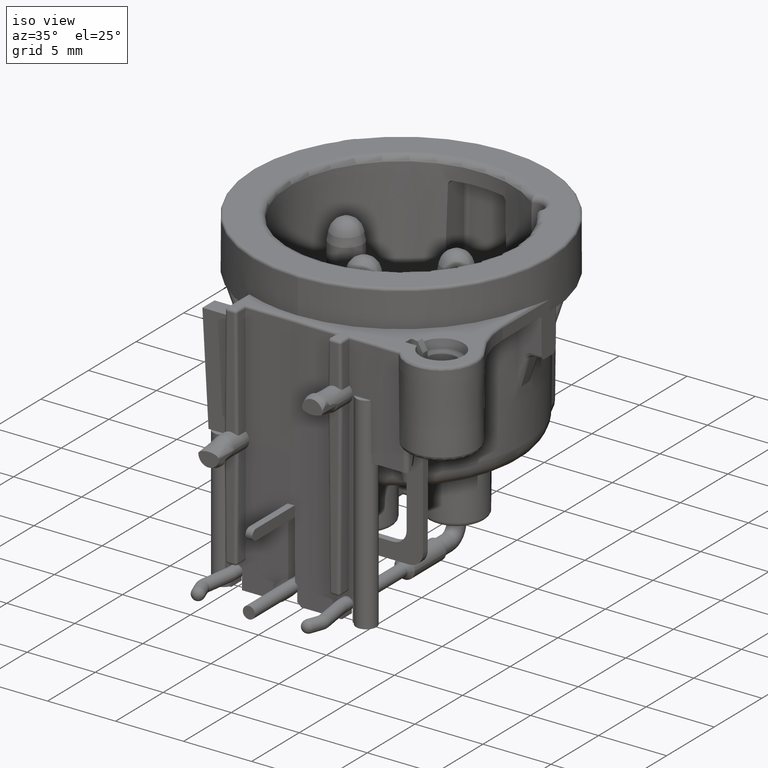
[diagram: clean part render]
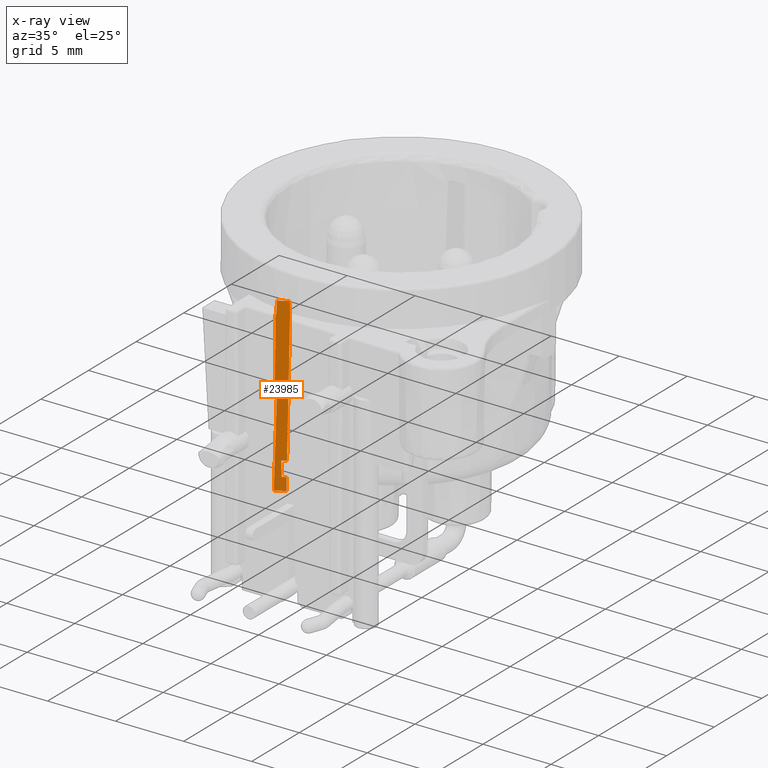
[diagram: x-ray — body ghosted, one internal face saturated and labeled with its STEP entity id]
A machine part, iso view, then the same camera in x-ray: the body is ghosted and one INTERNAL B-rep face — a face not visible from any outside direction — is saturated and labeled: STEP entity #23985.
In plain terms, the highlighted planar face has unit normal (-0.4999, 0.8659, 0.0175).
Its self-contained STEP definition (entity closure, byte-faithful):
#3296=DIRECTION('',(2.617661647924E-2,-5.035134147032E-3,9.996446529511E-1));
#3297=VECTOR('',#3296,9.344385460589E-1);
#3298=CARTESIAN_POINT('',(-1.852505576705E0,-9.419187570119E0,
-1.273410649608E1));
#3299=LINE('',#3298,#3297);
#3304=DIRECTION('',(2.617661647924E-2,-5.035134147030E-3,9.996446529511E-1));
#3305=VECTOR('',#3304,9.903519186316E0);
#3306=CARTESIAN_POINT('',(-1.799240623535E0,-9.429433209954E0,-1.07E1));
#3307=LINE('',#3306,#3305);
#8334=DIRECTION('',(3.511118707754E-2,8.566914879726E-5,9.993834085089E-1));
#8335=VECTOR('',#8334,6.470615456197E0);
#8336=CARTESIAN_POINT('',(-2.501439563641E0,-9.800554332118E0,
-1.238771031678E1));
#8337=LINE('',#8336,#8335);
#8338=DIRECTION('',(1.730895472542E-1,8.014798448857E-2,9.816396025089E-1));
#8339=VECTOR('',#8338,7.483920732676E-1);
#8340=CARTESIAN_POINT('',(-2.403787418983E0,-9.859982116280E0,
-6.655735884342E0));
#8341=LINE('',#8340,#8339);
#8342=DIRECTION('',(1.745152054354E-2,-1.007564008358E-2,9.997969423376E-1));
#8343=VECTOR('',#8342,5.711122258821E0);
#8344=CARTESIAN_POINT('',(-2.403787418983E0,-9.859982116280E0,
-6.655735884342E0));
#8345=LINE('',#8344,#8343);
#8346=CARTESIAN_POINT('',(-2.304119651556E0,-9.917525328633E0,
-9.457733126564E-1));
#8347=CARTESIAN_POINT('',(-2.295251139058E0,-9.912571091397E0,
-9.375372535513E-1));
#8348=CARTESIAN_POINT('',(-2.279769676826E0,-9.903987923399E0,
-9.199211870632E-1));
#8349=CARTESIAN_POINT('',(-2.262892763897E0,-9.894906511961E0,
-8.870525922216E-1));
#8350=CARTESIAN_POINT('',(-2.258456498854E0,-9.892803198822E0,
-8.643308256044E-1));
#8351=CARTESIAN_POINT('',(-2.257911208195E0,-9.892727496961E0,
-8.524668998244E-1));
#8353=CARTESIAN_POINT('',(-2.218643764214E0,-9.887238215834E0,
-1.165734175856E-14));
#8354=CARTESIAN_POINT('',(-2.225189568169E0,-9.888159582103E0,
-1.417912447191E-1));
#8355=CARTESIAN_POINT('',(-2.238279927263E0,-9.889995817652E0,
-4.256603070184E-1));
#8356=CARTESIAN_POINT('',(-2.251367845379E0,-9.891819091994E0,
-7.101025122037E-1));
#8357=CARTESIAN_POINT('',(-2.257911208195E0,-9.892727496961E0,
-8.524668998244E-1));
#8359=DIRECTION('',(8.660254037844E-1,5.E-1,1.090912012012E-14));
#8360=VECTOR('',#8359,7.836303199053E-1);
#8361=CARTESIAN_POINT('',(-2.218643764214E0,-9.887238215834E0,
-1.165734175856E-14));
#8362=LINE('',#8361,#8360);
#8363=DIRECTION('',(0.E0,2.015128016716E-2,-9.997969423376E-1));
#8364=VECTOR('',#8363,8.001624791225E-1);
#8365=CARTESIAN_POINT('',(-1.54E0,-9.495423055881E0,0.E0));
#8366=LINE('',#8365,#8364);
#8367=DIRECTION('',(-8.660254037844E-1,-5.E-1,0.E0));
#8368=VECTOR('',#8367,3.472870139268E-1);
#8369=CARTESIAN_POINT('',(-1.799240623535E0,-9.429433209954E0,-1.07E1));
#8370=LINE('',#8369,#8368);
#8371=DIRECTION('',(0.E0,2.015128016716E-2,-9.997969423376E-1));
#8372=VECTOR('',#8371,1.100223408794E0);
#8373=CARTESIAN_POINT('',(-2.1E0,-9.603076716918E0,-1.07E1));
#8374=LINE('',#8373,#8372);
#8375=DIRECTION('',(-8.660254037844E-1,-5.E-1,0.E0));
#8376=VECTOR('',#8375,3.140264264195E-1);
#8377=CARTESIAN_POINT('',(-1.828045137261E0,-9.423892593551E0,-1.18E1));
#8378=LINE('',#8377,#8376);
#8379=DIRECTION('',(-8.660254037844E-1,-5.E-1,0.E0));
#8380=VECTOR('',#8379,7.590772661989E-1);
#8381=CARTESIAN_POINT('',(-1.852505576705E0,-9.419187570119E0,
-1.273410649608E1));
#8382=LINE('',#8381,#8380);
#8383=CARTESIAN_POINT('',(-2.509885772668E0,-9.798726203219E0,
-1.273410649608E1));
#8384=CARTESIAN_POINT('',(-2.507870129313E0,-9.799889935453E0,
-1.261863036558E1));
#8385=CARTESIAN_POINT('',(-2.503455206997E0,-9.799390599884E0,
-1.250318644729E1));
#8386=CARTESIAN_POINT('',(-2.501439563641E0,-9.800554332118E0,
-1.238771031678E1));
#8405=CARTESIAN_POINT('',(-2.304119651556E0,-9.917525328633E0,
-9.457733126564E-1));
#12179=CARTESIAN_POINT('',(-2.509885772668E0,-9.798726203219E0,
-1.273410649608E1));
#12181=VERTEX_POINT('',#12179);
#12187=CARTESIAN_POINT('',(-1.852505576705E0,-9.419187570119E0,
-1.273410649608E1));
#12189=VERTEX_POINT('',#12187);
#12876=CARTESIAN_POINT('',(-1.54E0,-9.479298757585E0,-8.E-1));
#12878=VERTEX_POINT('',#12876);
#12888=CARTESIAN_POINT('',(-1.54E0,-9.495423055881E0,0.E0));
#12889=VERTEX_POINT('',#12888);
#12908=VERTEX_POINT('',#8405);
#12909=VERTEX_POINT('',#8351);
#12910=VERTEX_POINT('',#8353);
#13313=CARTESIAN_POINT('',(-2.403787418983E0,-9.859982116280E0,
-6.655735884342E0));
#13314=VERTEX_POINT('',#13313);
#13315=CARTESIAN_POINT('',(-2.501439563641E0,-9.800554332118E0,
-1.238771031678E1));
#13316=CARTESIAN_POINT('',(-2.274248573852E0,-9.8E0,-5.921084587019E0));
#13317=VERTEX_POINT('',#13315);
#13318=VERTEX_POINT('',#13316);
#13637=CARTESIAN_POINT('',(-1.828045137261E0,-9.423892593551E0,-1.18E1));
#13639=VERTEX_POINT('',#13637);
#13641=CARTESIAN_POINT('',(-1.799240623535E0,-9.429433209954E0,-1.07E1));
#13643=VERTEX_POINT('',#13641);
#13657=CARTESIAN_POINT('',(-2.1E0,-9.580905806761E0,-1.18E1));
#13658=VERTEX_POINT('',#13657);
#13659=CARTESIAN_POINT('',(-2.1E0,-9.603076716918E0,-1.07E1));
#13660=VERTEX_POINT('',#13659);
#23957=CARTESIAN_POINT('',(-3.927129920953E0,-1.059952008730E1,-1.36E1));
#23958=DIRECTION('',(-4.999238475782E-1,8.658935039208E-1,1.745240643728E-2));
#23959=DIRECTION('',(-8.660254037844E-1,-5.E-1,0.E0));
#23960=AXIS2_PLACEMENT_3D('',#23957,#23958,#23959);
#23961=PLANE('',#23960);
#23962=ORIENTED_EDGE('',*,*,#15940,.T.);
#23964=ORIENTED_EDGE('',*,*,#23963,.F.);
#23966=ORIENTED_EDGE('',*,*,#23965,.T.);
#23968=ORIENTED_EDGE('',*,*,#23967,.T.);
#23970=ORIENTED_EDGE('',*,*,#23969,.F.);
#23972=ORIENTED_EDGE('',*,*,#23971,.T.);
#23973=ORIENTED_EDGE('',*,*,#23532,.T.);
#23974=ORIENTED_EDGE('',*,*,#16711,.F.);
#23975=ORIENTED_EDGE('',*,*,#16113,.T.);
#23976=ORIENTED_EDGE('',*,*,#15998,.T.);
#23977=ORIENTED_EDGE('',*,*,#15645,.F.);
#23978=ORIENTED_EDGE('',*,*,#16700,.F.);
#23980=ORIENTED_EDGE('',*,*,#23979,.T.);
#23982=ORIENTED_EDGE('',*,*,#23981,.T.);
#23983=EDGE_LOOP('',(#23962,#23964,#23966,#23968,#23970,#23972,#23973,#23974,
#23975,#23976,#23977,#23978,#23980,#23982));
#23984=FACE_OUTER_BOUND('',#23983,.F.);
#23985=ADVANCED_FACE('',(#23984),#23961,.F.);
#8352=B_SPLINE_CURVE_WITH_KNOTS('',3,(#8346,#8347,#8348,#8349,#8350,#8351),
.UNSPECIFIED.,.F.,.F.,(4,1,1,4),(0.E0,3.333333333333E-1,6.666666666667E-1,1.E0),
.UNSPECIFIED.);
#8358=B_SPLINE_CURVE_WITH_KNOTS('',3,(#8353,#8354,#8355,#8356,#8357),
.UNSPECIFIED.,.F.,.F.,(4,1,4),(0.E0,5.E-1,1.E0),.UNSPECIFIED.);
#8387=B_SPLINE_CURVE_WITH_KNOTS('',3,(#8383,#8384,#8385,#8386),.UNSPECIFIED.,
.F.,.F.,(4,4),(0.E0,1.E0),.UNSPECIFIED.);
#15645=EDGE_CURVE('',#13639,#13658,#8378,.T.);
#15940=EDGE_CURVE('',#13317,#13318,#8337,.T.);
#15998=EDGE_CURVE('',#13660,#13658,#8374,.T.);
#16113=EDGE_CURVE('',#13643,#13660,#8370,.T.);
#16700=EDGE_CURVE('',#12189,#13639,#3299,.T.);
#16711=EDGE_CURVE('',#13643,#12878,#3307,.T.);
#23532=EDGE_CURVE('',#12889,#12878,#8366,.T.);
#23963=EDGE_CURVE('',#13314,#13318,#8341,.T.);
#23965=EDGE_CURVE('',#13314,#12908,#8345,.T.);
#23967=EDGE_CURVE('',#12908,#12909,#8352,.T.);
#23969=EDGE_CURVE('',#12910,#12909,#8358,.T.);
#23971=EDGE_CURVE('',#12910,#12889,#8362,.T.);
#23979=EDGE_CURVE('',#12189,#12181,#8382,.T.);
#23981=EDGE_CURVE('',#12181,#13317,#8387,.T.);